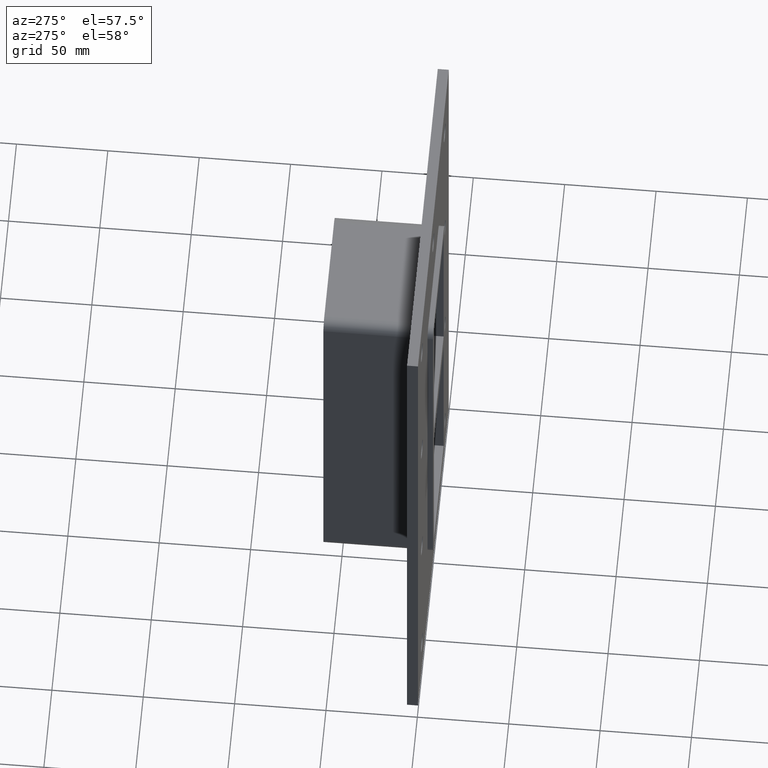
[diagram: clean part render]
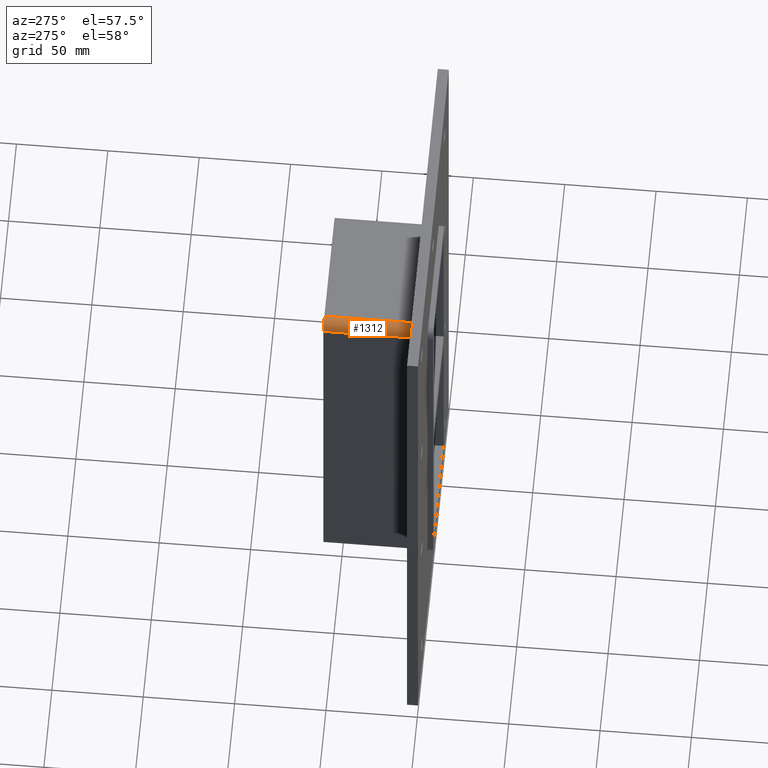
[diagram: same view with one face highlighted and labeled with its STEP entity id]
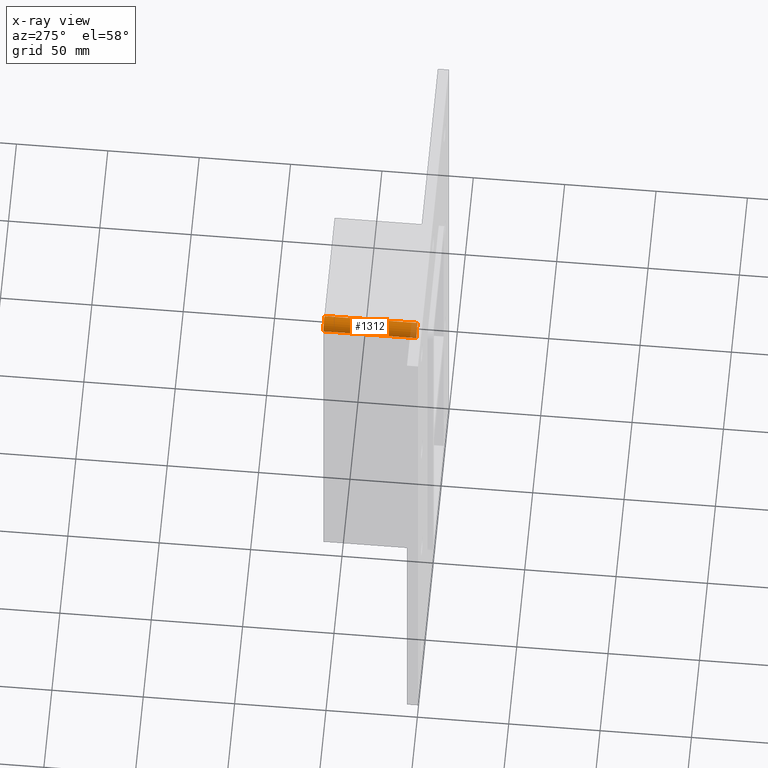
[diagram: x-ray of the same camera — body ghosted, the highlighted face saturated]
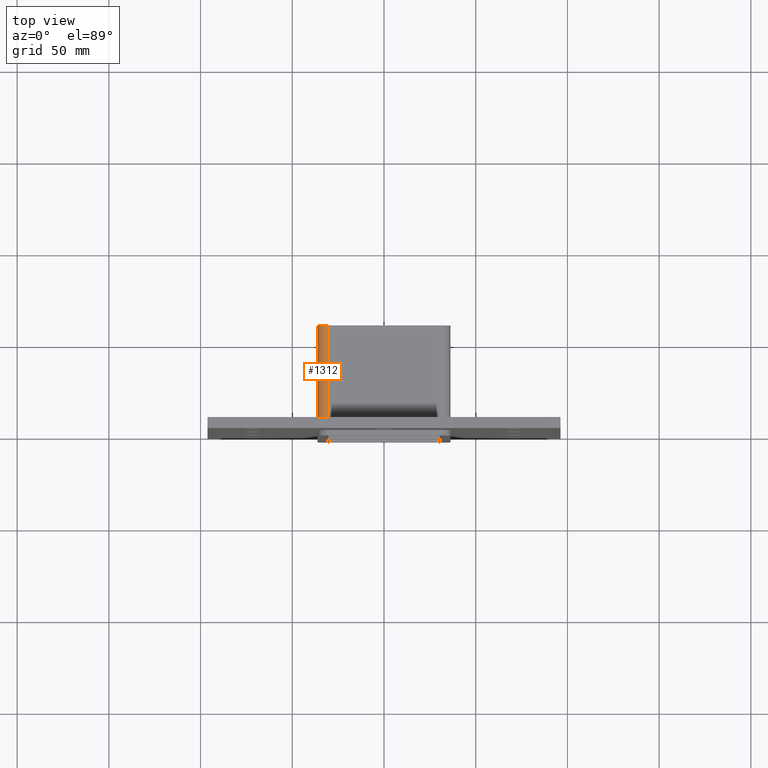
[diagram: same view with one face highlighted and labeled with its STEP entity id]
A machine part, auxiliary view. The second image highlights one B-rep face of the part: STEP entity #1312.
The next image is the same camera in x-ray: the body ghosted, the highlighted face saturated — about 7% of this face is hidden behind the body in this view.
A second angle (top view) of the same face is appended — the face is thin or edge-on in the first view.
In plain terms, the highlighted cylindrical surface (edge-blend (fillet) strip) has radius 6 mm, axis along (0, 1, 0).
Its self-contained STEP definition (entity closure, byte-faithful):
#635=CARTESIAN_POINT('',(-30.250000000000004,6.000000000000001,112.0));
#636=VERTEX_POINT('',#635);
#643=CARTESIAN_POINT('',(-36.25,6.000000000000001,106.00000000000001));
#644=VERTEX_POINT('',#643);
#645=CARTESIAN_POINT('',(-30.250000000000004,6.000000000000001,106.00000000000001));
#646=DIRECTION('',(0.0,1.0,0.0));
#647=DIRECTION('',(-0.707106781186548,0.0,0.707106781186547));
#648=AXIS2_PLACEMENT_3D('',#645,#646,#647);
#649=CIRCLE('',#648,6.0);
#650=EDGE_CURVE('',#644,#636,#649,.T.);
#1270=CARTESIAN_POINT('',(-36.25,57.0,106.00000000000001));
#1271=VERTEX_POINT('',#1270);
#1272=CARTESIAN_POINT('',(-36.25,57.0,106.00000000000001));
#1273=DIRECTION('',(0.0,-1.0,0.0));
#1274=VECTOR('',#1273,51.0);
#1275=LINE('',#1272,#1274);
#1276=EDGE_CURVE('',#1271,#644,#1275,.T.);
#1288=CARTESIAN_POINT('',(-30.250000000000004,0.0,106.00000000000001));
#1289=DIRECTION('',(0.0,1.0,0.0));
#1290=DIRECTION('',(-0.707106781186548,0.0,0.707106781186547));
#1291=AXIS2_PLACEMENT_3D('',#1288,#1289,#1290);
#1292=CYLINDRICAL_SURFACE('',#1291,6.0);
#1293=ORIENTED_EDGE('',*,*,#650,.T.);
#1294=CARTESIAN_POINT('',(-30.250000000000004,57.0,112.0));
#1295=VERTEX_POINT('',#1294);
#1296=CARTESIAN_POINT('',(-30.250000000000004,6.000000000000001,112.0));
#1297=DIRECTION('',(0.0,1.0,0.0));
#1298=VECTOR('',#1297,51.0);
#1299=LINE('',#1296,#1298);
#1300=EDGE_CURVE('',#636,#1295,#1299,.T.);
#1301=ORIENTED_EDGE('',*,*,#1300,.T.);
#1302=CARTESIAN_POINT('',(-30.250000000000004,57.0,106.00000000000001));
#1303=DIRECTION('',(0.0,-1.0,0.0));
#1304=DIRECTION('',(-0.707106781186548,0.0,0.707106781186547));
#1305=AXIS2_PLACEMENT_3D('',#1302,#1303,#1304);
#1306=CIRCLE('',#1305,6.0);
#1307=EDGE_CURVE('',#1295,#1271,#1306,.T.);
#1308=ORIENTED_EDGE('',*,*,#1307,.T.);
#1309=ORIENTED_EDGE('',*,*,#1276,.T.);
#1310=EDGE_LOOP('',(#1293,#1301,#1308,#1309));
#1311=FACE_OUTER_BOUND('',#1310,.T.);
#1312=ADVANCED_FACE('',(#1311),#1292,.T.);